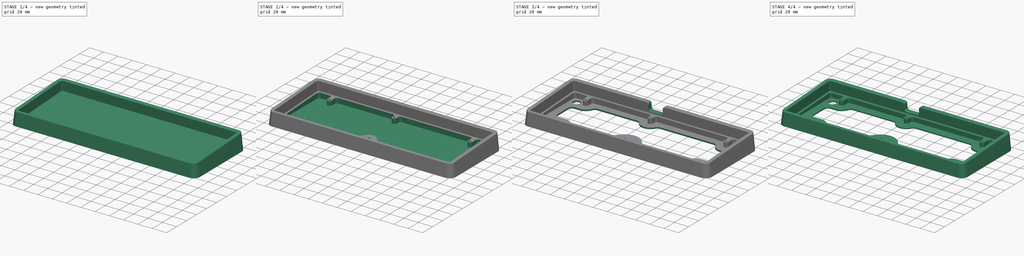
[diagram: build sequence overview — one tinted view per stage of 4, left to right]
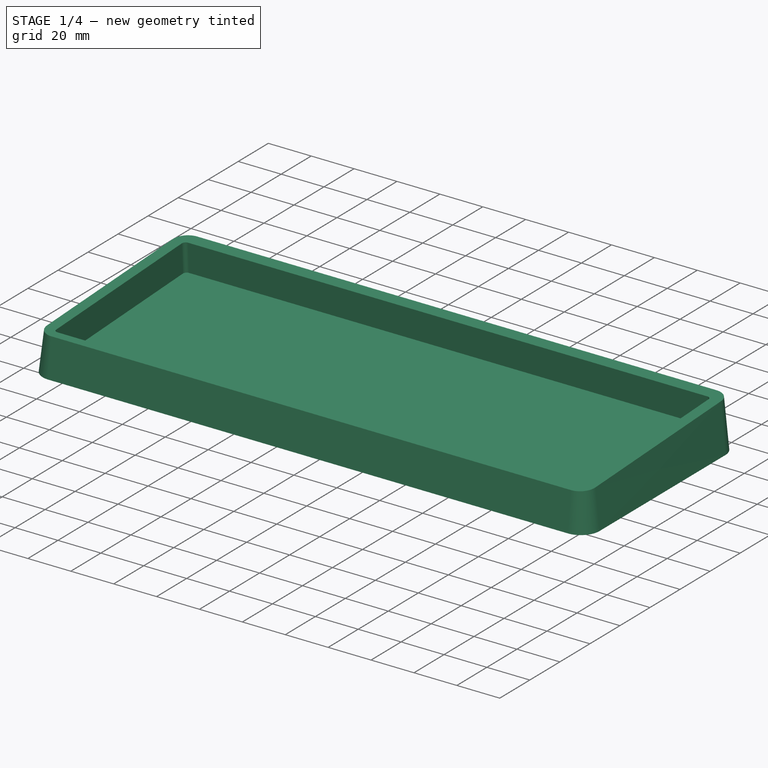
[diagram: stage 1 of 4 — iso view after this stage's code; geometry added in this stage tinted green]
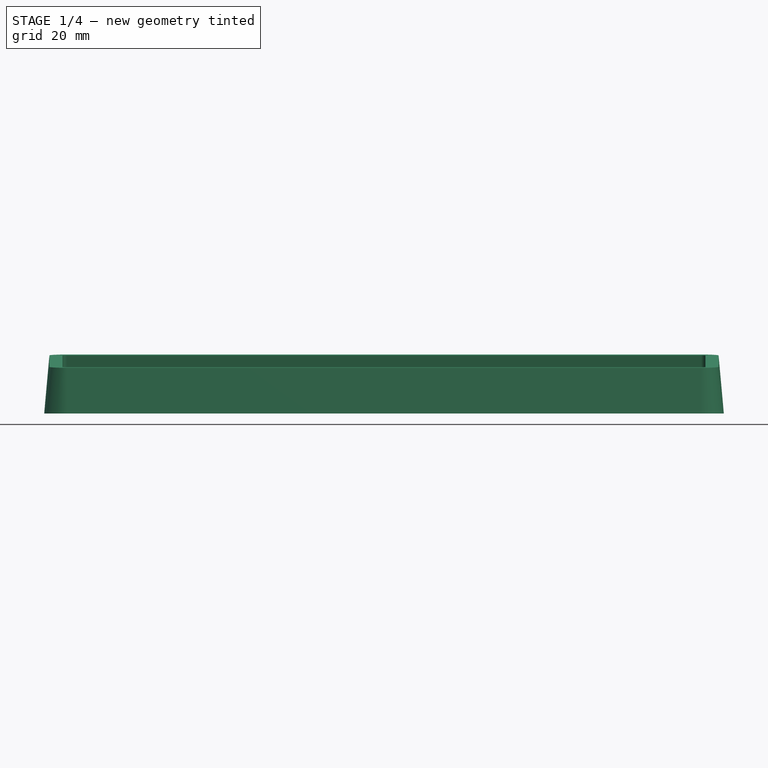
[diagram: stage 1 of 4 — front view after this stage's code; geometry added in this stage tinted green]
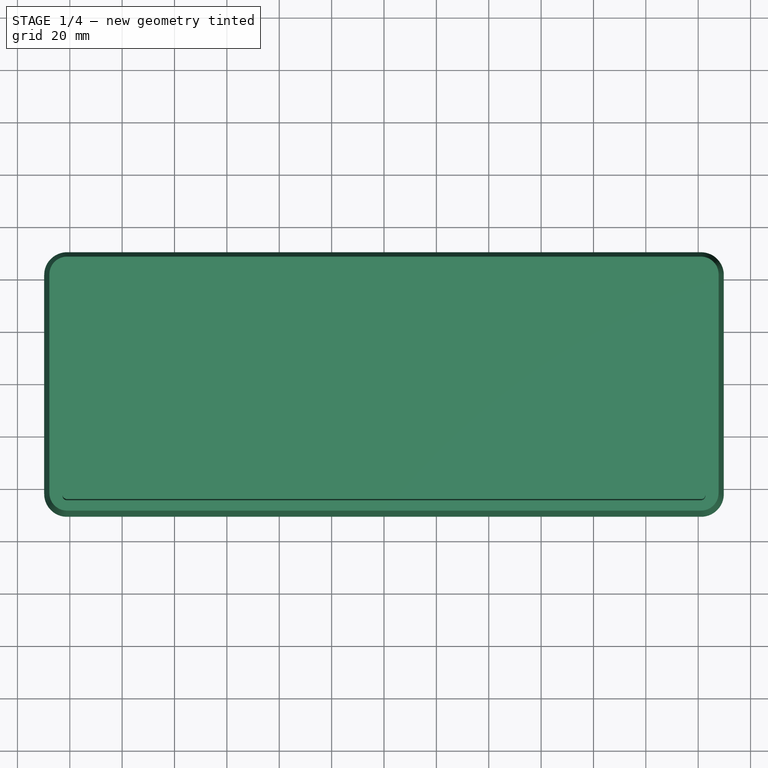
[diagram: stage 1 of 4 — top view after this stage's code; geometry added in this stage tinted green]
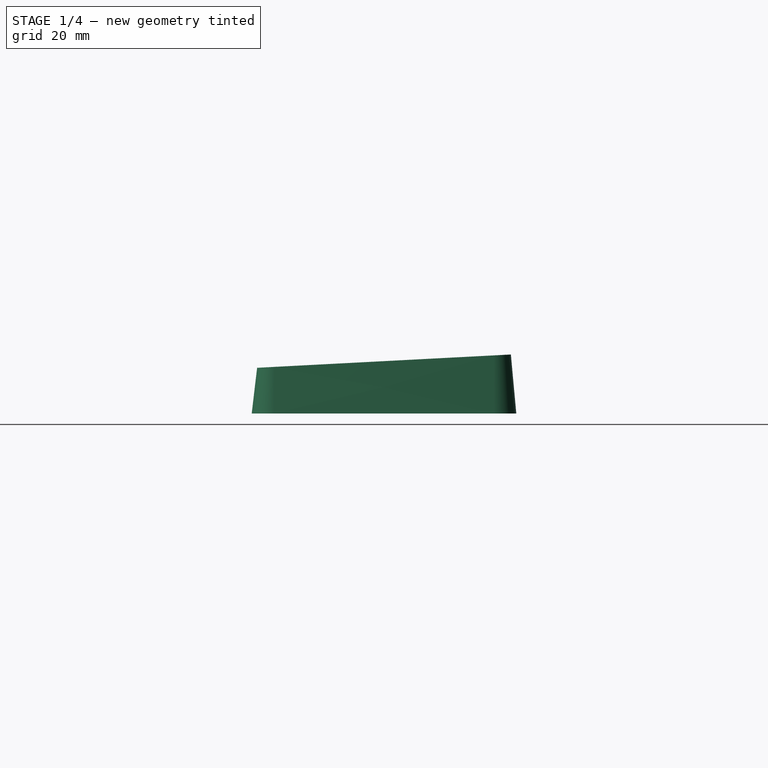
[diagram: stage 1 of 4 — right view after this stage's code; geometry added in this stage tinted green]
FCSTD DOCUMENT  (FreeCAD 0.20R)
Label: case
License: All rights reserved
LicenseURL: http://en.wikipedia.org/wiki/All_rights_reserved
objects: Sketcher::SketchObject×7, PartDesign::Pocket×4, PartDesign::Fillet×3, PartDesign::AdditiveLoft×1, PartDesign::Hole×1, PartDesign::Chamfer×1, PartDesign::Body×1
note: 28 computed .brp shape members not serialized (recipe doc carries the construction recipe); baked Part::Feature solids carry a one-line shape summary decoded from their .brp

FEATURE [Sketcher::SketchObject] Sketch
  FullyConstrained = false
  MapMode = 5
  Support = -> [XY_Plane]
  sketch-geometry (8):
    g0: LineSegment StartX=-121.08 StartY=50.5245 StartZ=0 EndX=121.08 EndY=50.5245 EndZ=0
    g1: LineSegment StartX=-129.78 StartY=-41.8245 StartZ=0 EndX=-129.78 EndY=41.8245 EndZ=0
    g2: ArcOfCircle CenterX=-121.08 CenterY=41.8245 CenterZ=0 NormalX=0 NormalY=0 NormalZ=1 AngleXU=0 Radius=8.7 StartAngle=1.5708 EndAngle=3.14159
    g3: ArcOfCircle CenterX=-121.08 CenterY=-41.8245 CenterZ=0 NormalX=0 NormalY=0 NormalZ=1 AngleXU=0 Radius=8.7 StartAngle=3.14159 EndAngle=4.71239
    g4: LineSegment StartX=121.08 StartY=-50.5245 StartZ=0 EndX=-121.08 EndY=-50.5245 EndZ=0
    g5: ArcOfCircle CenterX=121.08 CenterY=-41.8245 CenterZ=0 NormalX=0 NormalY=0 NormalZ=1 AngleXU=0 Radius=8.7 StartAngle=4.71239 EndAngle=6.28319
    g6: LineSegment StartX=129.78 StartY=41.8245 StartZ=0 EndX=129.78 EndY=-41.8245 EndZ=0
    g7: ArcOfCircle CenterX=121.08 CenterY=41.8245 CenterZ=0 NormalX=0 NormalY=0 NormalZ=1 AngleXU=0 Radius=8.7 StartAngle=0 EndAngle=1.5708
  constraints (8):
    c: Coincident(g1,g3)
    c: Coincident(g1,g2)
    c: Coincident(g3,g4)
    c: Coincident(g0,g2)
    c: Coincident(g4,g5)
    c: Coincident(g0,g7)
    c: Coincident(g5,g6)
    c: Coincident(g6,g7)
FEATURE [Sketcher::SketchObject] Sketch001
  AttachmentOffset = pos=(0,0,20) rot=(1,0,0;0.05236rad)
  FullyConstrained = false
  MapMode = 5
  Placement = pos=(0,0,20) rot=(1,0,0;0.05236rad)
  Support = -> [XY_Plane]
  sketch-geometry (8):
    g0: LineSegment StartX=-121.08 StartY=48.5245 StartZ=0 EndX=121.08 EndY=48.5245 EndZ=0
    g1: ArcOfCircle CenterX=121.08 CenterY=41.8245 CenterZ=0 NormalX=0 NormalY=0 NormalZ=1 AngleXU=0 Radius=6.7 StartAngle=0 EndAngle=1.5708
    g2: LineSegment StartX=127.78 StartY=41.8245 StartZ=0 EndX=127.78 EndY=-41.8245 EndZ=0
    g3: ArcOfCircle CenterX=121.08 CenterY=-41.8245 CenterZ=0 NormalX=0 NormalY=0 NormalZ=1 AngleXU=0 Radius=6.7 StartAngle=4.71239 EndAngle=6.28319
    g4: LineSegment StartX=121.08 StartY=-48.5245 StartZ=0 EndX=-121.08 EndY=-48.5245 EndZ=0
    g5: ArcOfCircle CenterX=-121.08 CenterY=-41.8245 CenterZ=0 NormalX=0 NormalY=0 NormalZ=1 AngleXU=0 Radius=6.7 StartAngle=3.14159 EndAngle=4.71239
    g6: LineSegment StartX=-127.78 StartY=-41.8245 StartZ=0 EndX=-127.78 EndY=41.8245 EndZ=0
    g7: ArcOfCircle CenterX=-121.08 CenterY=41.8245 CenterZ=0 NormalX=0 NormalY=0 NormalZ=1 AngleXU=0 Radius=6.7 StartAngle=1.5708 EndAngle=3.14159
  constraints (8):
    c: Coincident(g5,g6)
    c: Coincident(g6,g7)
    c: Coincident(g4,g5)
    c: Coincident(g0,g7)
    c: Coincident(g3,g4)
    c: Coincident(g0,g1)
    c: Coincident(g2,g3)
    c: Coincident(g1,g2)
FEATURE [PartDesign::AdditiveLoft] AdditiveLoft
  Closed = true
  Profile = -> Sketch001
  Ruled = true
  Sections = -> [Sketch]
FEATURE [Sketcher::SketchObject] Sketch002
  FullyConstrained = false
  MapMode = 5
  Placement = pos=(0,-1.04528,19.9452) rot=(1,0,0;0.05236rad)
  Support = -> [AdditiveLoft]
  sketch-geometry (8):
    g0: LineSegment StartX=-121.08 StartY=43.5245 StartZ=0 EndX=121.08 EndY=43.5245 EndZ=0
    g1: ArcOfCircle CenterX=121.08 CenterY=41.8245 CenterZ=0 NormalX=0 NormalY=0 NormalZ=1 AngleXU=0 Radius=1.7 StartAngle=0 EndAngle=1.5708
    g2: LineSegment StartX=122.78 StartY=41.8245 StartZ=0 EndX=122.78 EndY=-41.8245 EndZ=0
    g3: LineSegment StartX=121.08 StartY=-43.5245 StartZ=0 EndX=-121.08 EndY=-43.5245 EndZ=0
    g4: ArcOfCircle CenterX=121.08 CenterY=-41.8245 CenterZ=0 NormalX=0 NormalY=0 NormalZ=1 AngleXU=0 Radius=1.7 StartAngle=4.71239 EndAngle=6.28319
    g5: LineSegment StartX=-122.78 StartY=-41.8245 StartZ=0 EndX=-122.78 EndY=41.8245 EndZ=0
    g6: ArcOfCircle CenterX=-121.08 CenterY=-41.8245 CenterZ=0 NormalX=0 NormalY=0 NormalZ=1 AngleXU=0 Radius=1.7 StartAngle=3.14159 EndAngle=4.71239
    g7: ArcOfCircle CenterX=-121.08 CenterY=41.8245 CenterZ=0 NormalX=0 NormalY=0 NormalZ=1 AngleXU=0 Radius=1.7 StartAngle=1.5708 EndAngle=3.14159
  constraints (8):
    c: Coincident(g5,g6)
    c: Coincident(g5,g7)
    c: Coincident(g3,g6)
    c: Coincident(g0,g7)
    c: Coincident(g3,g4)
    c: Coincident(g0,g1)
    c: Coincident(g2,g4)
    c: Coincident(g1,g2)
FEATURE [PartDesign::Pocket] Pocket
  BaseFeature = -> AdditiveLoft
  Direction = (0,0.052336,-0.99863)
  Length = 13
  Length2 = 5
  Profile = -> Sketch002
  ReferenceAxis = -> Sketch002 [N_Axis]
  Type = 0
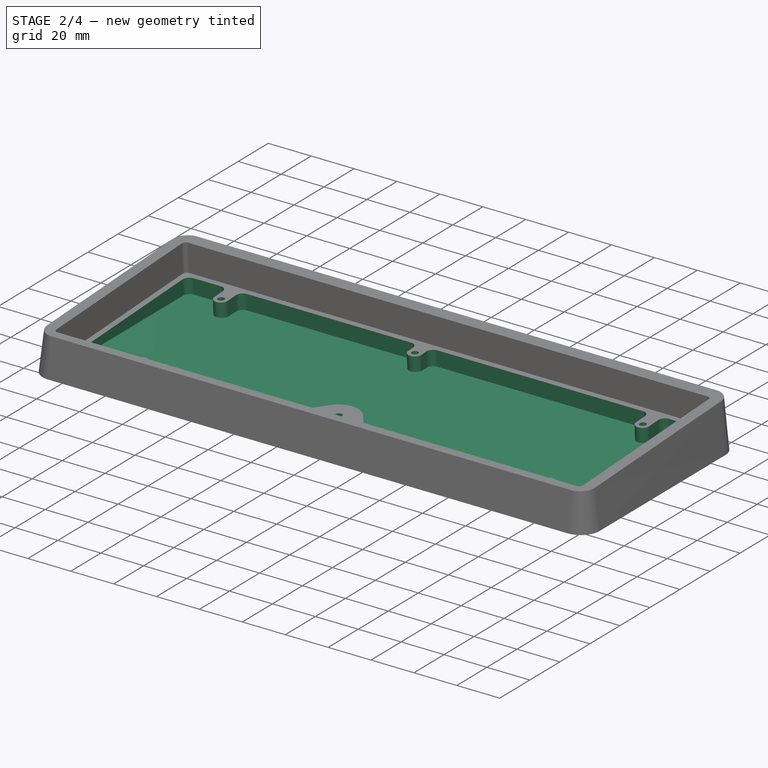
[diagram: stage 2 of 4 — iso view after this stage's code; geometry added in this stage tinted green]
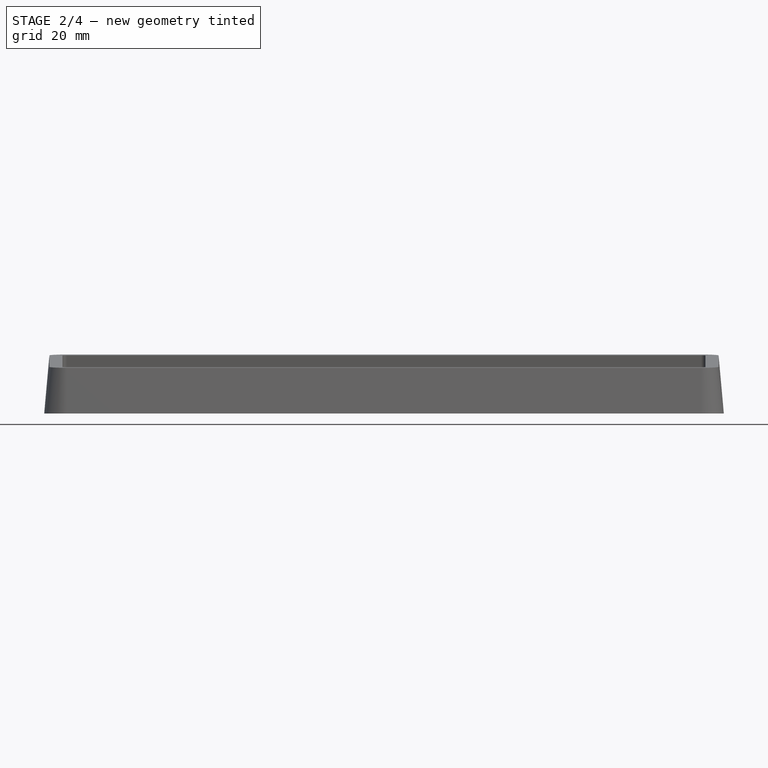
[diagram: stage 2 of 4 — front view after this stage's code; geometry added in this stage tinted green]
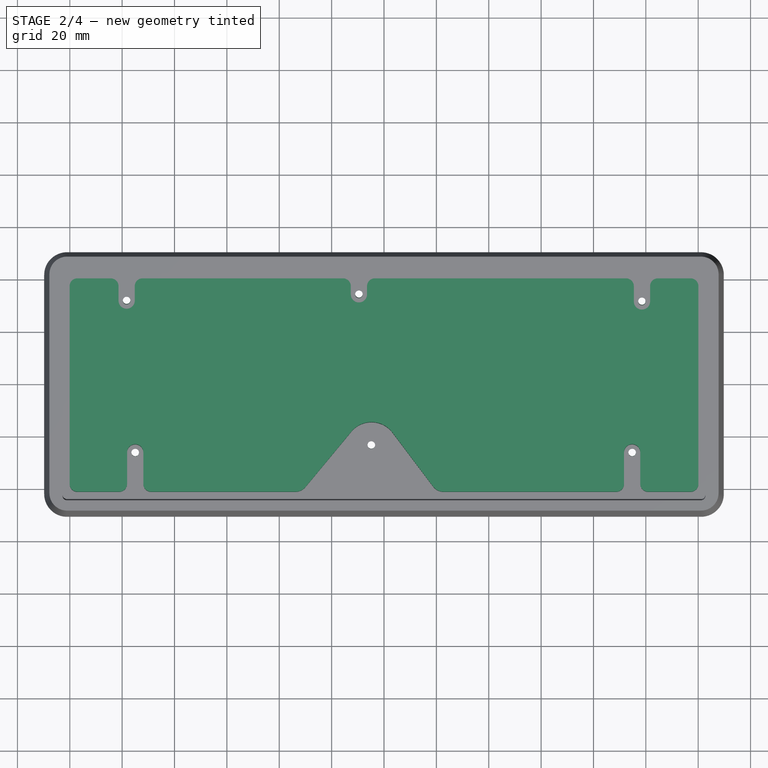
[diagram: stage 2 of 4 — top view after this stage's code; geometry added in this stage tinted green]
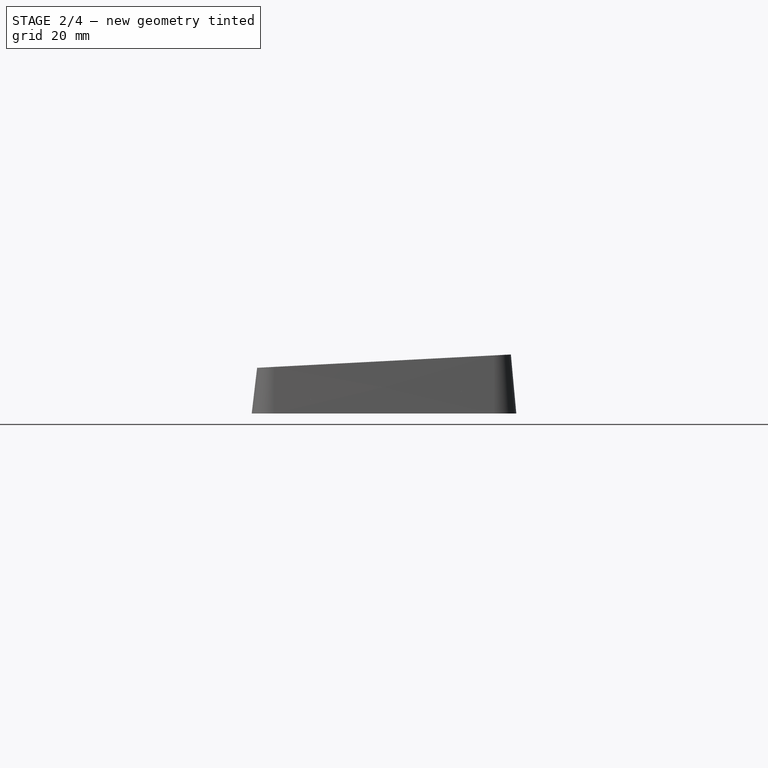
[diagram: stage 2 of 4 — right view after this stage's code; geometry added in this stage tinted green]
FEATURE [Sketcher::SketchObject] Sketch003
  FullyConstrained = false
  MapMode = 5
  Placement = pos=(0,-0.364917,6.96304) rot=(1,0,0;0.05236rad)
  Support = -> [Pocket]
  sketch-geometry (44):
    g0: ArcOfCircle CenterX=94.7757 CenterY=-25.7882 CenterZ=0 NormalX=0 NormalY=0 NormalZ=1 AngleXU=0 Radius=3.1 StartAngle=0 EndAngle=3.14159
    g1: ArcOfCircle CenterX=98.5174 CenterY=31.9828 CenterZ=0 NormalX=0 NormalY=0 NormalZ=1 AngleXU=0 Radius=3.1 StartAngle=3.14159 EndAngle=6.28319
    g2: ArcOfCircle CenterX=-98.2998 CenterY=32.3064 CenterZ=0 NormalX=0 NormalY=0 NormalZ=1 AngleXU=0 Radius=3.1 StartAngle=3.14159 EndAngle=6.28318
    g3: ArcOfCircle CenterX=-95.0205 CenterY=-25.8006 CenterZ=0 NormalX=0 NormalY=0 NormalZ=1 AngleXU=0 Radius=3.1 StartAngle=0 EndAngle=3.14159
    g4: ArcOfCircle CenterX=-33.8363 CenterY=-35.8245 CenterZ=0 NormalX=0 NormalY=0 NormalZ=1 AngleXU=0 Radius=5 StartAngle=4.71239 EndAngle=5.5914
    g5: ArcOfCircle CenterX=22.7478 CenterY=-35.8245 CenterZ=0 NormalX=0 NormalY=0 NormalZ=1 AngleXU=0 Radius=5 StartAngle=3.78746 EndAngle=4.71239
    g6: LineSegment StartX=3.22095 StartY=-18.2237 StartZ=0 EndX=18.7549 EndY=-38.8339 EndZ=0
    g7: LineSegment StartX=-29.9858 StartY=-39.014 StartZ=0 EndX=-12.4659 EndY=-17.8634 EndZ=0
    g8: ArcOfCircle CenterX=-4.76484 CenterY=-24.2426 CenterZ=0 NormalX=0 NormalY=0 NormalZ=1 AngleXU=0 Radius=10 StartAngle=0.645866 EndAngle=2.44981
    g9: ArcOfCircle CenterX=-9.57692 CenterY=34.7143 CenterZ=0 NormalX=0 NormalY=0 NormalZ=1 AngleXU=0 Radius=3.1 StartAngle=3.14159 EndAngle=6.28319
    g10: LineSegment StartX=101.617 StartY=31.9828 StartZ=0 EndX=101.617 EndY=37.8245 EndZ=0
    g11: ArcOfCircle CenterX=104.617 CenterY=37.8245 CenterZ=0 NormalX=0 NormalY=0 NormalZ=1 AngleXU=0 Radius=3 StartAngle=1.5708 EndAngle=3.14159
    g12: LineSegment StartX=95.4174 StartY=31.9828 StartZ=0 EndX=95.4174 EndY=37.8245 EndZ=0
    g13: ArcOfCircle CenterX=92.4174 CenterY=37.8245 CenterZ=0 NormalX=0 NormalY=0 NormalZ=1 AngleXU=0 Radius=3 StartAngle=0 EndAngle=1.5708
    g14: LineSegment StartX=-6.47692 StartY=34.7143 StartZ=0 EndX=-6.47692 EndY=37.8245 EndZ=0
    g15: LineSegment StartX=-3.47692 StartY=40.8245 StartZ=0 EndX=92.4174 EndY=40.8245 EndZ=0
    g16: ArcOfCircle CenterX=-3.47692 CenterY=37.8245 CenterZ=0 NormalX=0 NormalY=0 NormalZ=1 AngleXU=0 Radius=3 StartAngle=1.5708 EndAngle=3.14159
    g17: LineSegment StartX=-12.6769 StartY=34.7143 StartZ=0 EndX=-12.6769 EndY=37.8245 EndZ=0
    g18: ArcOfCircle CenterX=-15.6769 CenterY=37.8245 CenterZ=0 NormalX=0 NormalY=0 NormalZ=1 AngleXU=0 Radius=3 StartAngle=0 EndAngle=1.5708
    g19: LineSegment StartX=-92.1998 StartY=40.8245 StartZ=0 EndX=-15.6769 EndY=40.8245 EndZ=0
    g20: LineSegment StartX=-95.1998 StartY=32.3064 StartZ=0 EndX=-95.1998 EndY=37.8245 EndZ=0
    g21: ArcOfCircle CenterX=-92.1998 CenterY=37.8245 CenterZ=0 NormalX=0 NormalY=0 NormalZ=1 AngleXU=0 Radius=3 StartAngle=1.5708 EndAngle=3.14159
    g22: LineSegment StartX=-101.4 StartY=32.3064 StartZ=0 EndX=-101.4 EndY=37.8245 EndZ=0
    g23: ArcOfCircle CenterX=-104.4 CenterY=37.8245 CenterZ=0 NormalX=0 NormalY=0 NormalZ=1 AngleXU=0 Radius=3 StartAngle=0 EndAngle=1.5708
    g24: LineSegment StartX=-98.1205 StartY=-25.8006 StartZ=0 EndX=-98.1205 EndY=-37.8245 EndZ=0
    g25: ArcOfCircle CenterX=-101.12 CenterY=-37.8245 CenterZ=0 NormalX=0 NormalY=0 NormalZ=1 AngleXU=0 Radius=3 StartAngle=4.71239 EndAngle=6.28319
    g26: LineSegment StartX=-91.9205 StartY=-25.8006 StartZ=0 EndX=-91.9205 EndY=-37.8245 EndZ=0
    g27: LineSegment StartX=-33.8363 StartY=-40.8245 StartZ=0 EndX=-88.9205 EndY=-40.8245 EndZ=0
    g28: ArcOfCircle CenterX=-88.9205 CenterY=-37.8245 CenterZ=0 NormalX=0 NormalY=0 NormalZ=1 AngleXU=0 Radius=3 StartAngle=3.14159 EndAngle=4.71239
    g29: LineSegment StartX=97.8757 StartY=-25.7882 StartZ=0 EndX=97.8757 EndY=-37.8245 EndZ=0
    g30: ArcOfCircle CenterX=100.876 CenterY=-37.8245 CenterZ=0 NormalX=0 NormalY=0 NormalZ=1 AngleXU=0 Radius=3 StartAngle=3.14159 EndAngle=4.71239
    g31: LineSegment StartX=91.6757 StartY=-25.7882 StartZ=0 EndX=91.6757 EndY=-37.8245 EndZ=0
    g32: LineSegment StartX=88.6757 StartY=-40.8245 StartZ=0 EndX=22.7478 EndY=-40.8245 EndZ=0
    g33: ArcOfCircle CenterX=88.6757 CenterY=-37.8245 CenterZ=0 NormalX=0 NormalY=0 NormalZ=1 AngleXU=0 Radius=3 StartAngle=4.71239 EndAngle=6.28319
    g34: LineSegment StartX=117.08 StartY=-40.8245 StartZ=0 EndX=100.876 EndY=-40.8245 EndZ=0
    g35: ArcOfCircle CenterX=117.08 CenterY=-37.8245 CenterZ=0 NormalX=0 NormalY=0 NormalZ=1 AngleXU=0 Radius=3 StartAngle=4.71239 EndAngle=6.28319
    g36: LineSegment StartX=104.617 StartY=40.8245 StartZ=0 EndX=117.08 EndY=40.8245 EndZ=0
    g37: LineSegment StartX=120.08 StartY=37.8245 StartZ=0 EndX=120.08 EndY=-37.8245 EndZ=0
    g38: ArcOfCircle CenterX=117.08 CenterY=37.8245 CenterZ=0 NormalX=0 NormalY=0 NormalZ=1 AngleXU=0 Radius=3 StartAngle=0 EndAngle=1.5708
    g39: LineSegment StartX=-117.08 StartY=40.8245 StartZ=0 EndX=-104.4 EndY=40.8245 EndZ=0
    g40: ArcOfCircle CenterX=-117.08 CenterY=37.8245 CenterZ=0 NormalX=0 NormalY=0 NormalZ=1 AngleXU=0 Radius=3 StartAngle=1.5708 EndAngle=3.14159
    g41: LineSegment StartX=-101.12 StartY=-40.8245 StartZ=0 EndX=-117.08 EndY=-40.8245 EndZ=0
    g42: LineSegment StartX=-120.08 StartY=-37.8245 StartZ=0 EndX=-120.08 EndY=37.8245 EndZ=0
    g43: ArcOfCircle CenterX=-117.08 CenterY=-37.8245 CenterZ=0 NormalX=0 NormalY=0 NormalZ=1 AngleXU=0 Radius=3 StartAngle=3.14159 EndAngle=4.71239
  constraints (44):
    c: Coincident(g42,g43)
    c: Coincident(g40,g42)
    c: Coincident(g41,g43)
    c: Coincident(g39,g40)
    c: Coincident(g23,g39)
    c: Coincident(g2,g22)
    c: Coincident(g22,g23)
    c: Coincident(g25,g41)
    c: Coincident(g24,g25)
    c: Coincident(g3,g24)
    c: Coincident(g2,g20)
    c: Coincident(g20,g21)
    c: Coincident(g19,g21)
    c: Coincident(g26,g28)
    c: Coincident(g3,g26)
    c: Coincident(g27,g28)
    c: Coincident(g4,g27)
    c: Coincident(g4,g7)
    c: Coincident(g18,g19)
    c: Coincident(g9,g17)
    c: Coincident(g17,g18)
    c: Coincident(g7,g8)
    c: Coincident(g9,g14)
    c: Coincident(g14,g16)
    c: Coincident(g15,g16)
    c: Coincident(g6,g8)
    c: Coincident(g5,g6)
    c: Coincident(g5,g32)
    c: Coincident(g32,g33)
    c: Coincident(g31,g33)
    c: Coincident(g0,g31)
    c: Coincident(g13,g15)
    c: Coincident(g1,g12)
    c: Coincident(g12,g13)
    c: Coincident(g29,g30)
    c: Coincident(g0,g29)
    c: Coincident(g30,g34)
    c: Coincident(g1,g10)
    c: Coincident(g10,g11)
    c: Coincident(g11,g36)
    c: Coincident(g34,g35)
    c: Coincident(g36,g38)
    c: Coincident(g35,g37)
    c: Coincident(g37,g38)
FEATURE [PartDesign::Pocket] Pocket001
  BaseFeature = -> Pocket
  Direction = (0,0.052336,-0.99863)
  Length = 0
  Length2 = 5
  Offset = -2
  Profile = -> Sketch003
  ReferenceAxis = -> Sketch003 [N_Axis]
  Type = 3
  UpToFace = -> Pocket [Face18]
FEATURE [Sketcher::SketchObject] Sketch004
  FullyConstrained = false
  MapMode = 5
  Placement = pos=(0,-0.364917,6.96304) rot=(1,0,0;0.05236rad)
  Support = -> [Pocket]
  sketch-geometry (6):
    g0: Circle CenterX=98.5174 CenterY=31.9828 CenterZ=0 NormalX=0 NormalY=0 NormalZ=-1 AngleXU=0 Radius=1.1
    g1: Circle CenterX=94.7757 CenterY=-25.7882 CenterZ=0 NormalX=0 NormalY=0 NormalZ=-1 AngleXU=0 Radius=1.1
    g2: Circle CenterX=-98.2998 CenterY=32.3064 CenterZ=0 NormalX=0 NormalY=0 NormalZ=-1 AngleXU=0 Radius=1.1
    g3: Circle CenterX=-95.0205 CenterY=-25.8006 CenterZ=0 NormalX=0 NormalY=0 NormalZ=-1 AngleXU=0 Radius=1.1
    g4: Circle CenterX=-4.845 CenterY=-22.8968 CenterZ=0 NormalX=0 NormalY=0 NormalZ=-1 AngleXU=0 Radius=1.1
    g5: Circle CenterX=-9.57692 CenterY=34.7143 CenterZ=0 NormalX=0 NormalY=0 NormalZ=-1 AngleXU=0 Radius=1.1
FEATURE [PartDesign::Hole] Hole
  BaseFeature = -> Pocket001
  CustomThreadClearance = 0
  Depth = 564.482
  DepthType = 1
  Diameter = 2.9
  DrillForDepth = false
  DrillPoint = 1
  DrillPointAngle = 118
  HoleCutCountersinkAngle = 90
  HoleCutCustomValues = false
  HoleCutDepth = 0
  HoleCutDiameter = 6.1
  HoleCutType = 0
  ModelThread = false
  Profile = -> Sketch004
  Tapered = false
  TaperedAngle = 90
  ThreadClass = 0
  ThreadDepth = 564.482
  ThreadDepthType = 0
  ThreadDirection = 0
  ThreadFit = 0
  ThreadSize = 8
  ThreadType = 1
  Threaded = false
  UseCustomThreadClearance = false
FEATURE [PartDesign::Chamfer] Chamfer
  Angle = 45
  Base = -> Hole [Edge52,Edge49,Edge50,Edge53,Edge51,Edge54]
  BaseFeature = -> Hole
  ChamferType = 0
  FlipDirection = false
  Size = 3
  Size2 = 1
  SupportTransform = false
  UseAllEdges = false
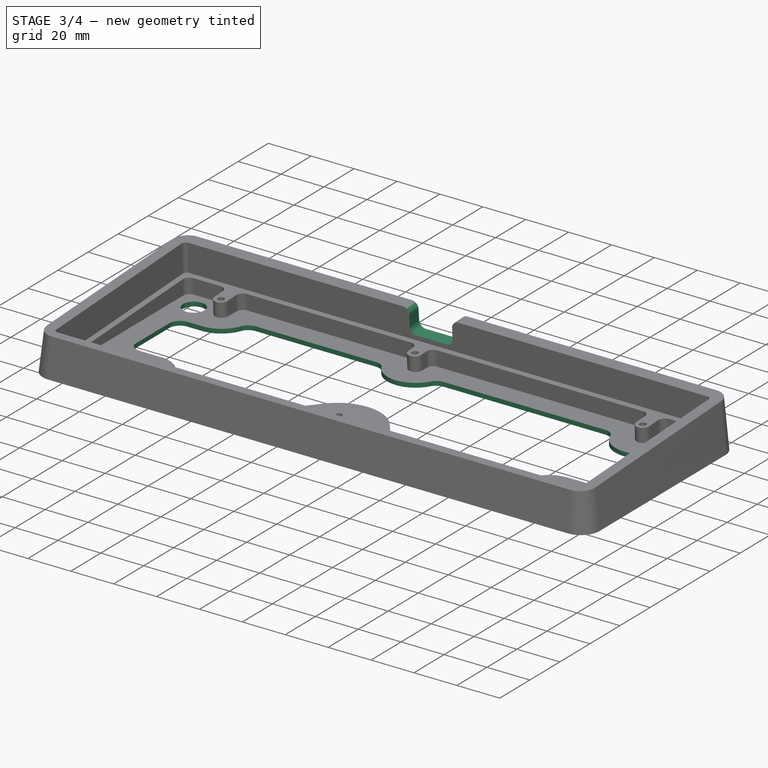
[diagram: stage 3 of 4 — iso view after this stage's code; geometry added in this stage tinted green]
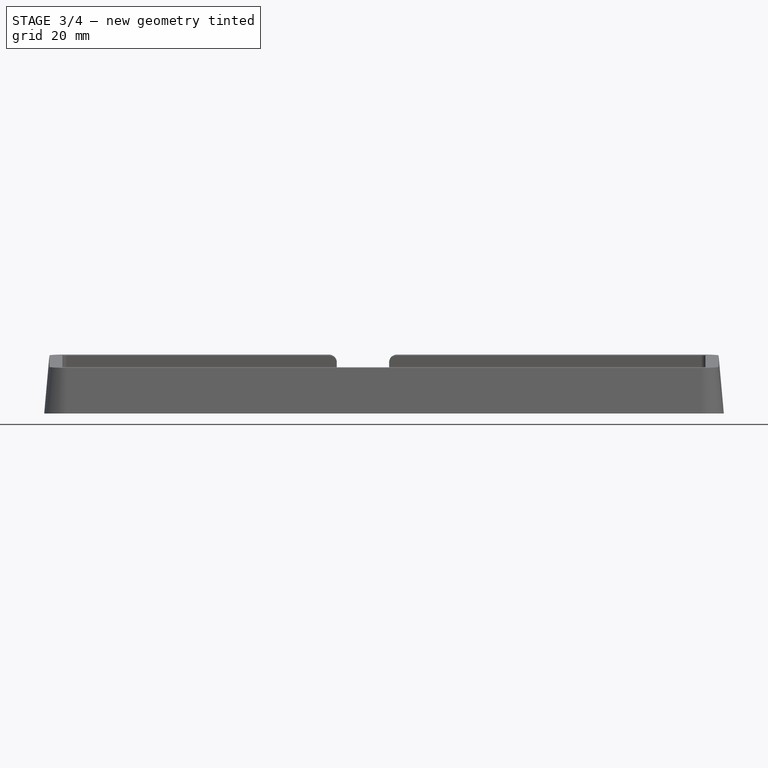
[diagram: stage 3 of 4 — front view after this stage's code; geometry added in this stage tinted green]
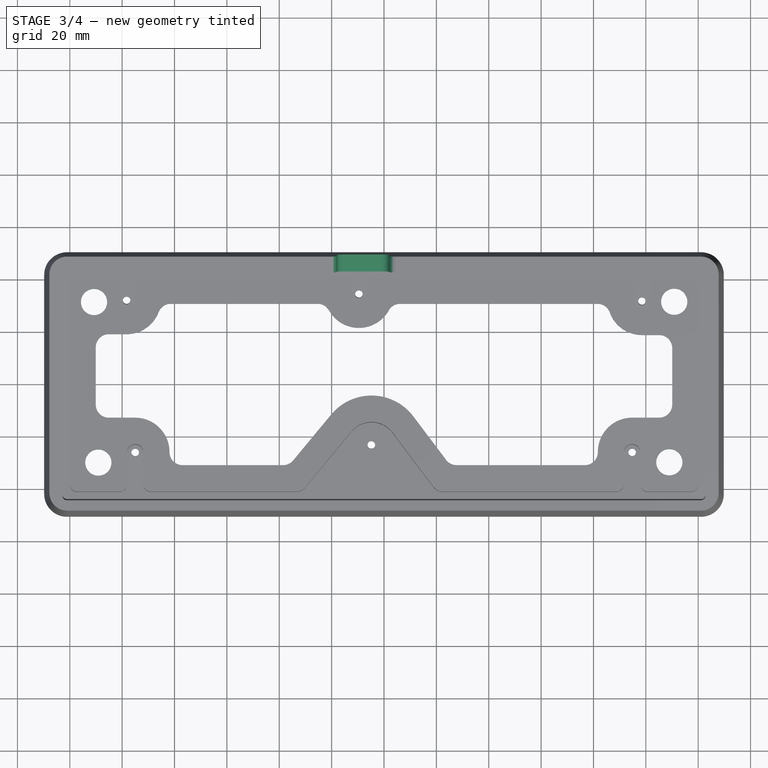
[diagram: stage 3 of 4 — top view after this stage's code; geometry added in this stage tinted green]
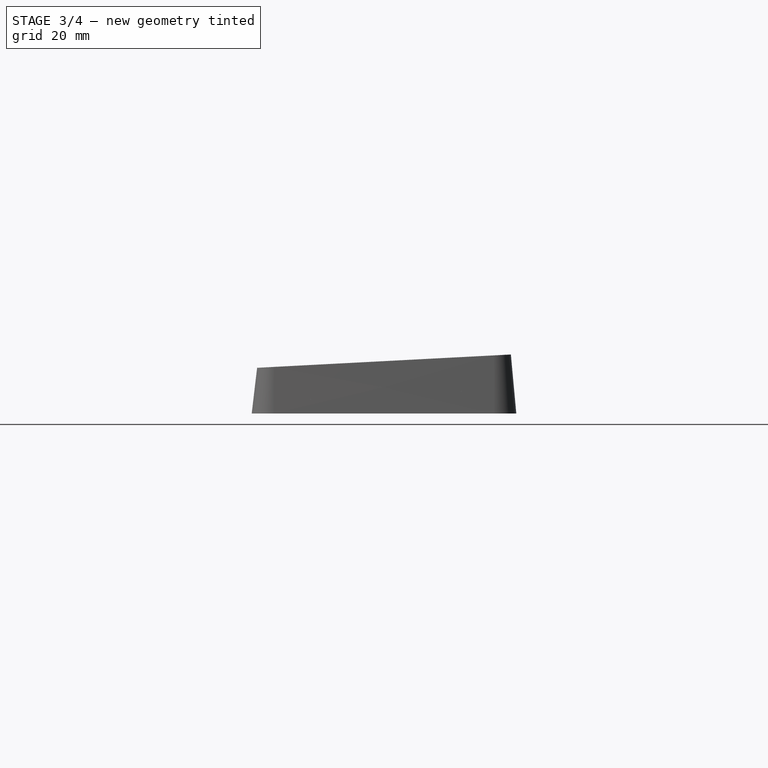
[diagram: stage 3 of 4 — right view after this stage's code; geometry added in this stage tinted green]
FEATURE [Sketcher::SketchObject] Sketch005
  FullyConstrained = false
  MapMode = 5
  Placement = pos=(0,0,1.99726) rot=(0,0,1;0rad)
  Support = -> [Chamfer]
  sketch-geometry (34):
    g0: ArcOfCircle CenterX=-4.76484 CenterY=-24.2426 CenterZ=0 NormalX=0 NormalY=0 NormalZ=1 AngleXU=0 Radius=20 StartAngle=0.645866 EndAngle=2.44981
    g1: ArcOfCircle CenterX=76.6757 CenterY=-25.8245 CenterZ=0 NormalX=0 NormalY=0 NormalZ=1 AngleXU=0 Radius=5 StartAngle=4.71239 EndAngle=6.28519
    g2: ArcOfCircle CenterX=105.08 CenterY=-7.68824 CenterZ=0 NormalX=0 NormalY=0 NormalZ=1 AngleXU=0 Radius=5 StartAngle=4.71239 EndAngle=6.28319
    g3: LineSegment StartX=110.08 StartY=13.8828 StartZ=0 EndX=110.08 EndY=-7.68824 EndZ=0
    g4: ArcOfCircle CenterX=105.08 CenterY=13.8828 CenterZ=0 NormalX=0 NormalY=0 NormalZ=1 AngleXU=0 Radius=5 StartAngle=0 EndAngle=1.5708
    g5: ArcOfCircle CenterX=81.4973 CenterY=25.8245 CenterZ=0 NormalX=0 NormalY=0 NormalZ=1 AngleXU=0 Radius=5 StartAngle=0.34717 EndAngle=1.5708
    g6: LineSegment StartX=6.1895 StartY=30.8245 StartZ=0 EndX=81.4973 EndY=30.8245 EndZ=0
    g7: ArcOfCircle CenterX=6.1895 CenterY=25.8245 CenterZ=0 NormalX=0 NormalY=0 NormalZ=1 AngleXU=0 Radius=5 StartAngle=1.5708 EndAngle=2.62818
    g8: ArcOfCircle CenterX=-9.57692 CenterY=34.7143 CenterZ=0 NormalX=0 NormalY=0 NormalZ=1 AngleXU=0 Radius=13.1 StartAngle=3.65501 EndAngle=5.76977
    g9: ArcOfCircle CenterX=-25.3433 CenterY=25.8245 CenterZ=0 NormalX=0 NormalY=0 NormalZ=1 AngleXU=0 Radius=5 StartAngle=0.513413 EndAngle=1.5708
    g10: LineSegment StartX=11.2067 StartY=-12.2048 StartZ=0 EndX=23.7401 EndY=-28.8339 EndZ=0
    g11: LineSegment StartX=76.6757 StartY=-30.8245 StartZ=0 EndX=27.733 EndY=-30.8245 EndZ=0
    g12: ArcOfCircle CenterX=27.733 CenterY=-25.8245 CenterZ=0 NormalX=0 NormalY=0 NormalZ=1 AngleXU=0 Radius=5 StartAngle=3.78746 EndAngle=4.71239
    g13: LineSegment StartX=-34.6876 StartY=-29.014 StartZ=0 EndX=-20.167 EndY=-11.4843 EndZ=0
    g14: ArcOfCircle CenterX=-38.5381 CenterY=-25.8245 CenterZ=0 NormalX=0 NormalY=0 NormalZ=1 AngleXU=0 Radius=5 StartAngle=4.71239 EndAngle=5.5914
    g15: LineSegment StartX=-38.5381 StartY=-30.8245 StartZ=0 EndX=-76.9205 EndY=-30.8245 EndZ=0
    g16: ArcOfCircle CenterX=-76.9205 CenterY=-25.8245 CenterZ=0 NormalX=0 NormalY=0 NormalZ=1 AngleXU=0 Radius=5 StartAngle=3.14027 EndAngle=4.71239
    g17: ArcOfCircle CenterX=-105.08 CenterY=-7.70056 CenterZ=0 NormalX=0 NormalY=0 NormalZ=1 AngleXU=0 Radius=5 StartAngle=3.14159 EndAngle=4.71239
    g18: LineSegment StartX=-110.08 StartY=-7.70056 StartZ=0 EndX=-110.08 EndY=14.2064 EndZ=0
    g19: ArcOfCircle CenterX=-105.08 CenterY=14.2064 CenterZ=0 NormalX=0 NormalY=0 NormalZ=1 AngleXU=0 Radius=5 StartAngle=1.5708 EndAngle=3.14159
    g20: LineSegment StartX=-81.4003 StartY=30.8245 StartZ=0 EndX=-25.3433 EndY=30.8245 EndZ=0
    g21: ArcOfCircle CenterX=-81.4003 CenterY=25.8245 CenterZ=0 NormalX=0 NormalY=0 NormalZ=1 AngleXU=0 Radius=5 StartAngle=1.5708 EndAngle=2.77534
    g22: ArcOfCircle CenterX=-98.2998 CenterY=32.3064 CenterZ=0 NormalX=0 NormalY=0 NormalZ=1 AngleXU=0 Radius=13.1 StartAngle=4.71239 EndAngle=5.91693
    g23: LineSegment StartX=-98.2998 StartY=19.2064 StartZ=0 EndX=-105.08 EndY=19.2064 EndZ=0
    g24: ArcOfCircle CenterX=-95.0205 CenterY=-25.8006 CenterZ=0 NormalX=0 NormalY=0 NormalZ=1 AngleXU=0 Radius=13.1 StartAngle=6.28187 EndAngle=7.85332
    g25: LineSegment StartX=-105.08 StartY=-12.7006 StartZ=0 EndX=-95.0118 EndY=-12.7006 EndZ=0
    g26: ArcOfCircle CenterX=98.5174 CenterY=31.9828 CenterZ=0 NormalX=0 NormalY=0 NormalZ=1 AngleXU=0 Radius=13.1 StartAngle=3.48876 EndAngle=4.71239
    g27: LineSegment StartX=105.08 StartY=18.8828 StartZ=0 EndX=98.5174 EndY=18.8828 EndZ=0
    g28: ArcOfCircle CenterX=94.7757 CenterY=-25.7882 CenterZ=0 NormalX=0 NormalY=0 NormalZ=1 AngleXU=0 Radius=13.1 StartAngle=1.5718 EndAngle=3.14359
    g29: Circle CenterX=-110.74 CenterY=31.4844 CenterZ=0 NormalX=0 NormalY=0 NormalZ=-1 AngleXU=0 Radius=5
    g30: Circle CenterX=-109.1 CenterY=-29.8447 CenterZ=0 NormalX=0 NormalY=0 NormalZ=-1 AngleXU=0 Radius=5
    g31: Circle CenterX=108.978 CenterY=-29.7223 CenterZ=0 NormalX=0 NormalY=0 NormalZ=-1 AngleXU=0 Radius=5
    g32: Circle CenterX=110.849 CenterY=31.5932 CenterZ=0 NormalX=0 NormalY=0 NormalZ=-1 AngleXU=0 Radius=5
    g33: LineSegment StartX=94.7626 StartY=-12.6882 StartZ=0 EndX=105.08 EndY=-12.6882 EndZ=0
  constraints (30):
    c: Coincident(g17,g18)
    c: Coincident(g18,g19)
    c: Coincident(g17,g25)
    c: Coincident(g19,g23)
    c: Coincident(g22,g23)
    c: Coincident(g24,g25)
    c: Coincident(g21,g22)
    c: Coincident(g16,g24)
    c: Coincident(g20,g21)
    c: Coincident(g15,g16)
    c: Coincident(g14,g15)
    c: Coincident(g13,g14)
    c: Coincident(g9,g20)
    c: Coincident(g8,g9)
    c: Coincident(g0,g13)
    c: Coincident(g7,g8)
    c: Coincident(g6,g7)
    c: Coincident(g0,g10)
    c: Coincident(g10,g12)
    c: Coincident(g11,g12)
    c: Coincident(g1,g11)
    c: Coincident(g5,g6)
    c: Coincident(g1,g28)
    c: Coincident(g5,g26)
    c: Coincident(g28,g33)
    c: Coincident(g26,g27)
    c: Coincident(g2,g33)
    c: Coincident(g4,g27)
    c: Coincident(g2,g3)
    c: Coincident(g3,g4)
FEATURE [PartDesign::Pocket] Pocket002
  BaseFeature = -> Chamfer
  Direction = (0,0,-1)
  Length = 5
  Length2 = 5
  Profile = -> Sketch005
  ReferenceAxis = -> Sketch005 [N_Axis]
  Type = 1
FEATURE [Sketcher::SketchObject] Sketch006
  FullyConstrained = false
  MapMode = 5
  Placement = pos=(0,-1.04528,19.9452) rot=(1,0,0;0.05236rad)
  Support = -> [Pocket002]
  sketch-geometry (4):
    g0: LineSegment StartX=-18.0389 StartY=35.5245 StartZ=0 EndX=-18.0389 EndY=58.5245 EndZ=0
    g1: LineSegment StartX=1.96106 StartY=58.5245 StartZ=0 EndX=1.96106 EndY=35.5245 EndZ=0
    g2: LineSegment StartX=1.96106 StartY=35.5245 StartZ=0 EndX=-18.0389 EndY=35.5245 EndZ=0
    g3: LineSegment StartX=-18.0389 StartY=58.5245 StartZ=0 EndX=1.96106 EndY=58.5245 EndZ=0
  constraints (4):
    c: Coincident(g0,g2)
    c: Coincident(g0,g3)
    c: Coincident(g1,g2)
    c: Coincident(g1,g3)
FEATURE [PartDesign::Pocket] Pocket003
  BaseFeature = -> Pocket002
  Direction = (0,0.052336,-0.99863)
  Length = 0
  Length2 = 5
  Offset = -2
  Profile = -> Sketch006
  ReferenceAxis = -> Sketch006 [N_Axis]
  Type = 3
  UpToFace = -> Pocket002 [Face110]
FEATURE [PartDesign::Fillet] Fillet
  Base = -> Pocket003 [Edge149,Edge163,Edge159,Edge161]
  BaseFeature = -> Pocket003
  Radius = 3
  SupportTransform = false
  UseAllEdges = false
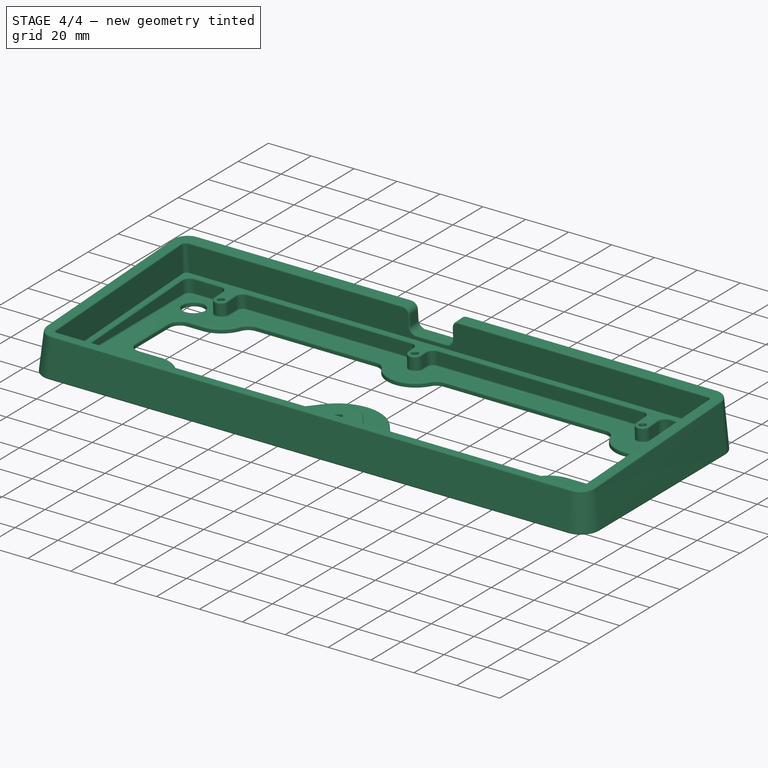
[diagram: stage 4 of 4 — iso view after this stage's code; geometry added in this stage tinted green]
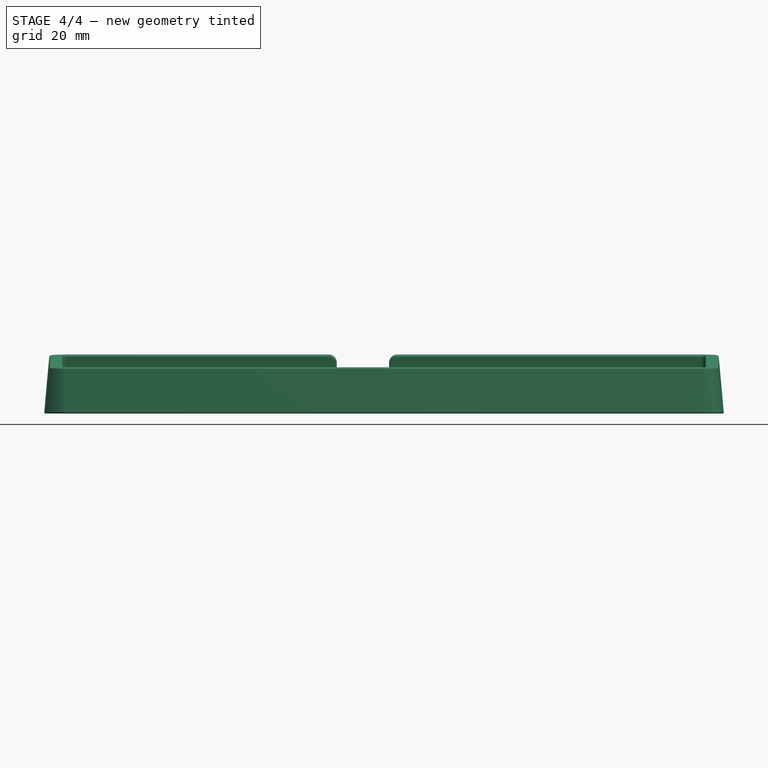
[diagram: stage 4 of 4 — front view after this stage's code; geometry added in this stage tinted green]
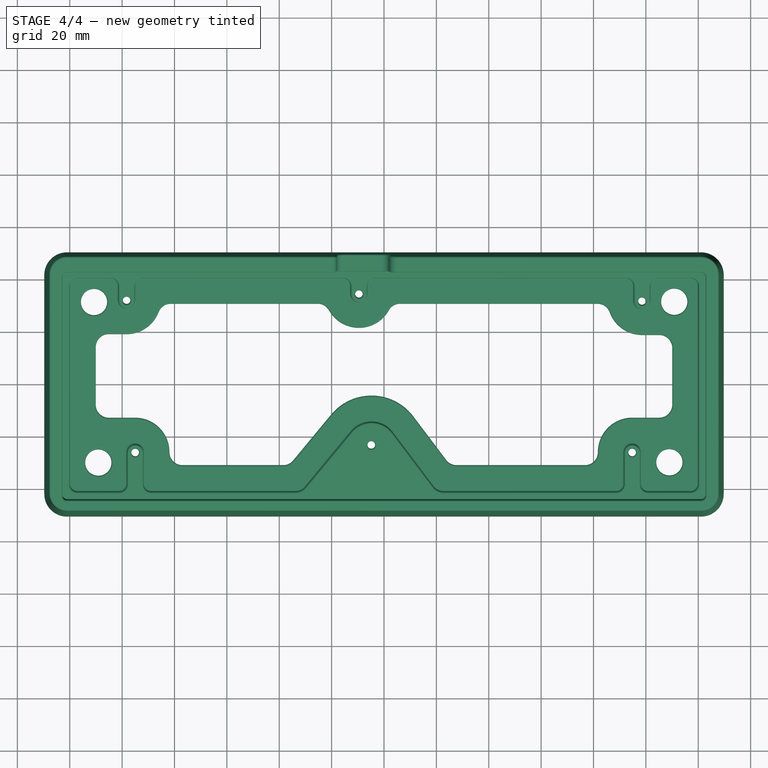
[diagram: stage 4 of 4 — top view after this stage's code; geometry added in this stage tinted green]
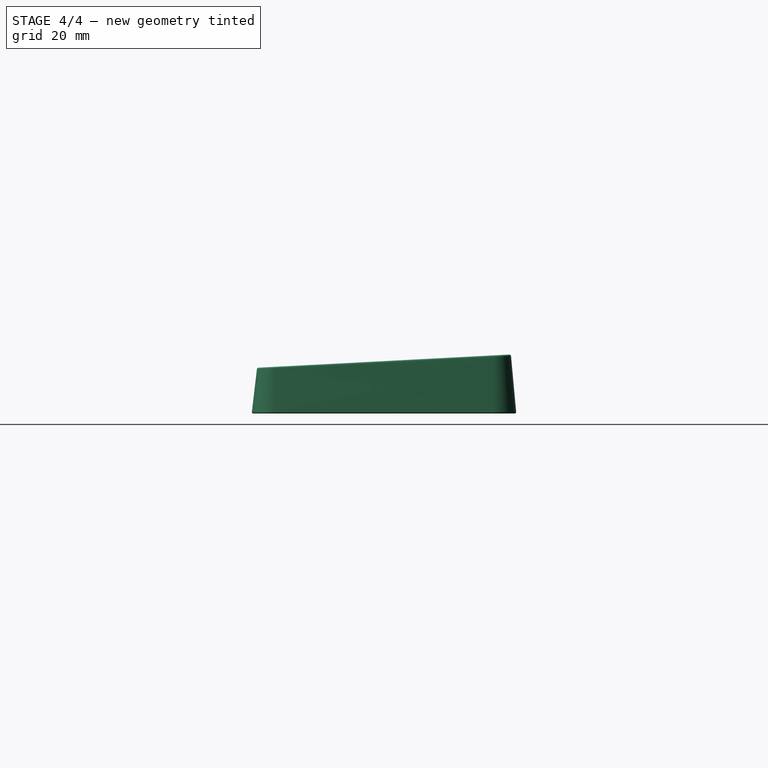
[diagram: stage 4 of 4 — right view after this stage's code; geometry added in this stage tinted green]
FEATURE [PartDesign::Fillet] Fillet001
  Base = -> Fillet [Face67,Edge219,Edge241,Edge194,Edge193,Edge239,Edge240,Edge242,Face29,Face64,Face28,Edge275,Face27,Face62,Face63,Face2]
  BaseFeature = -> Fillet
  Radius = 0.65
  SupportTransform = false
  UseAllEdges = false
FEATURE [PartDesign::Fillet] Fillet002
  Base = -> Fillet001 [Edge3]
  BaseFeature = -> Fillet001
  Radius = 0.5
  SupportTransform = false
  UseAllEdges = false
FEATURE [PartDesign::Body] Body
  Group = -> [Sketch,Sketch001,AdditiveLoft,Sketch002,Pocket,Sketch003,Pocket001,Sketch004,Hole,Chamfer,Sketch005,Pocket002,Sketch006,Pocket003,Fillet,Fillet001,Fillet002]
  Origin = -> Origin
  Tip = -> Fillet002
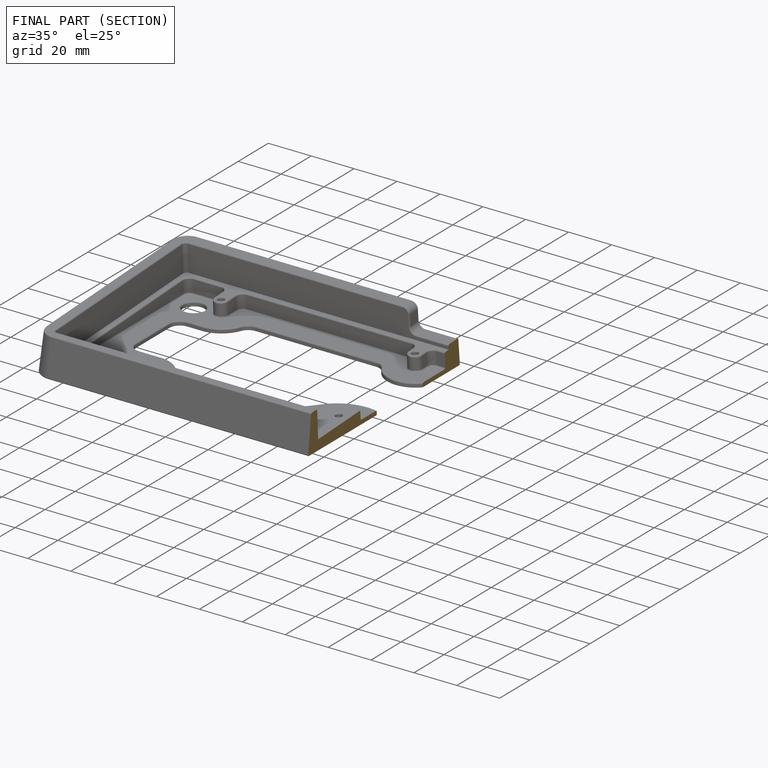
[diagram: finished part — half-section view (interior)]
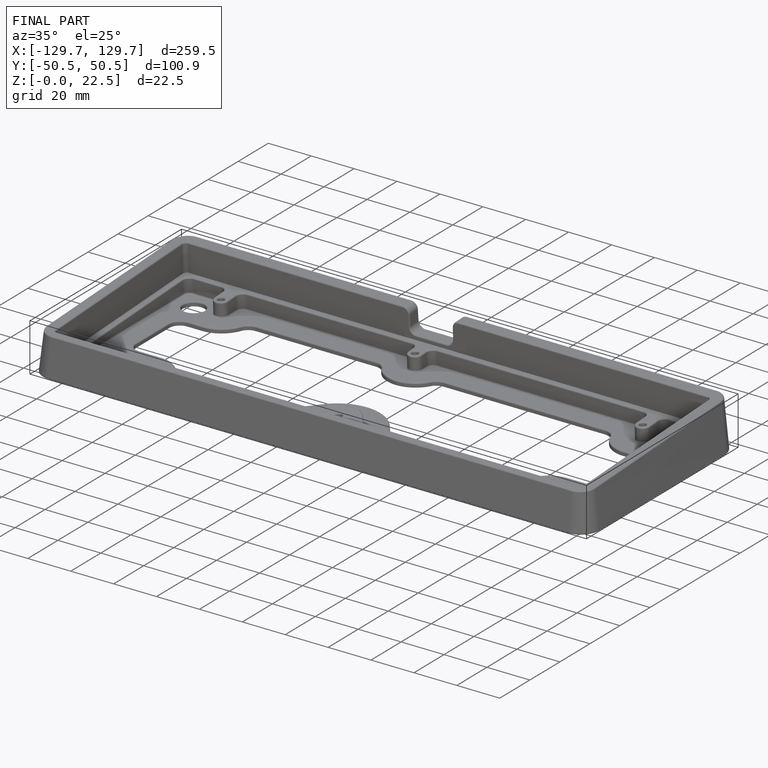
[diagram: finished part — iso view with bounding-box wireframe]
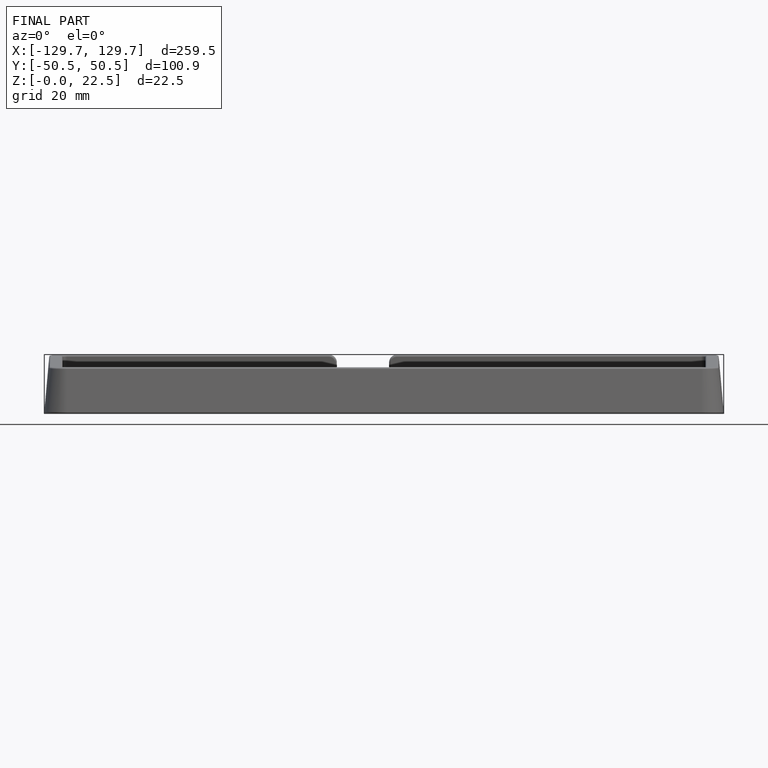
[diagram: finished part — front view with bounding-box wireframe]
